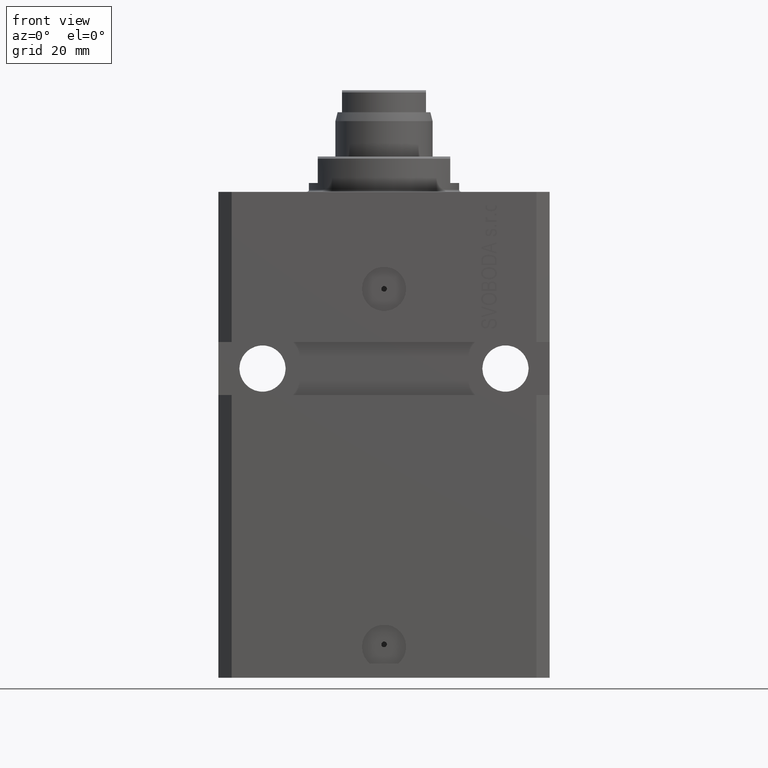
[diagram: clean part render]
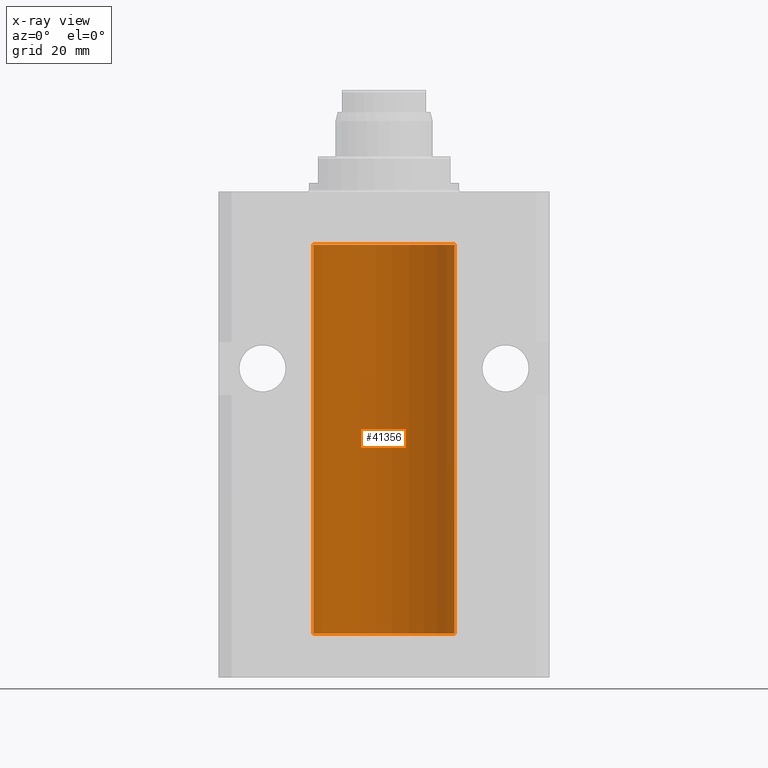
[diagram: x-ray — body ghosted, one internal face saturated and labeled with its STEP entity id]
A machine part, front view, then the same camera in x-ray: the body is ghosted and one INTERNAL B-rep face — a face not visible from any outside direction — is saturated and labeled: STEP entity #41356.
In plain terms, the highlighted cylindrical surface (partial cylindrical patch) has radius 16 mm, axis along (0, 0, 1).
Its self-contained STEP definition (entity closure, byte-faithful):
#907 = CARTESIAN_POINT ( 'NONE',  ( 16.00000000000000000, 0.000000000000000000, -99.99999999999998579 ) ) ;
#1214 = DIRECTION ( 'NONE',  ( 0.000000000000000000, 0.000000000000000000, 1.000000000000000000 ) ) ;
#1346 = DIRECTION ( 'NONE',  ( -0.000000000000000000, -0.000000000000000000, 1.000000000000000000 ) ) ;
#1534 = VERTEX_POINT ( 'NONE', #42484 ) ;
#2034 = CARTESIAN_POINT ( 'NONE',  ( 16.00000000000001066, 0.08261762387943044628, -98.62500000000001421 ) ) ;
#3842 = FACE_OUTER_BOUND ( 'NONE', #26630, .T. ) ;
#4181 = EDGE_CURVE ( 'NONE', #10370, #41296, #8754, .T. ) ;
#4591 = VERTEX_POINT ( 'NONE', #35826 ) ;
#5964 = CARTESIAN_POINT ( 'NONE',  ( 15.99711856062700477, 0.3252985083514284281, -97.44140297987712529 ) ) ;
#6061 = CARTESIAN_POINT ( 'NONE',  ( 15.99934183755190986, 0.1636877470527013101, -98.60872690654072414 ) ) ;
#6594 = CARTESIAN_POINT ( 'NONE',  ( 16.00000000000000000, 0.000000000000000000, -12.00000000000000000 ) ) ;
#7344 = DIRECTION ( 'NONE',  ( 0.000000000000000000, 0.000000000000000000, 1.000000000000000000 ) ) ;
#7639 = CARTESIAN_POINT ( 'NONE',  ( 0.000000000000000000, 0.000000000000000000, -99.99999999999998579 ) ) ;
#8754 = LINE ( 'NONE', #907, #24798 ) ;
#8823 = CARTESIAN_POINT ( 'NONE',  ( 0.000000000000000000, 0.000000000000000000, -99.99999999999998579 ) ) ;
#9251 = EDGE_CURVE ( 'NONE', #28134, #10370, #22077, .T. ) ;
#9863 = CARTESIAN_POINT ( 'NONE',  ( 15.99707608081895138, 0.3151028052310259620, -98.54594170697734512 ) ) ;
#10079 = CARTESIAN_POINT ( 'NONE',  ( 15.99070366873610283, 0.5574063959867601170, -98.32639436837558833 ) ) ;
#10149 = LINE ( 'NONE', #20569, #35337 ) ;
#10370 = VERTEX_POINT ( 'NONE', #37584 ) ;
#10791 = CARTESIAN_POINT ( 'NONE',  ( 15.98778830858070954, 0.6250000000079481977, -21.99999999999914735 ) ) ;
#11008 = CARTESIAN_POINT ( 'NONE',  ( 15.98778830858103817, 0.6249999999996181943, -21.91847885046212951 ) ) ;
#11026 = CARTESIAN_POINT ( 'NONE',  ( -16.00000000000000000, 1.959434878635765131E-15, -12.00000000000000000 ) ) ;
#12508 = VECTOR ( 'NONE', #46630, 1000.000000000000000 ) ;
#12606 = CARTESIAN_POINT ( 'NONE',  ( 16.00000000000013145, 3.665532692826917502E-13, -97.37499999999657518 ) ) ;
#13277 = VERTEX_POINT ( 'NONE', #30690 ) ;
#13386 = AXIS2_PLACEMENT_3D ( 'NONE', #7639, #22055, #41707 ) ;
#13401 = EDGE_CURVE ( 'NONE', #4591, #28134, #13532, .T. ) ;
#13506 = EDGE_CURVE ( 'NONE', #31815, #43885, #44548, .T. ) ;
#13532 = B_SPLINE_CURVE_WITH_KNOTS ( 'NONE', 3,
 ( #24260, #2034, #6061, #9863, #38501, #10079, #20494, #34937 ),
 .UNSPECIFIED., .F., .F.,
 ( 4, 2, 2, 4 ),
 ( 1.783888443149829469E-18, 0.0002443331572175257886, 0.0004886663144350497342, 0.0009773326288700682433 ),
 .UNSPECIFIED. ) ;
#13642 = CARTESIAN_POINT ( 'NONE',  ( 15.98778830858101685, 0.6250000000001205702, -22.16311639173018833 ) ) ;
#13699 = CIRCLE ( 'NONE', #40162, 16.00000000000000000 ) ;
#14356 = ORIENTED_EDGE ( 'NONE', *, *, #4181, .T. ) ;
#14584 = ORIENTED_EDGE ( 'NONE', *, *, #9251, .T. ) ;
#14875 = EDGE_CURVE ( 'NONE', #1534, #13277, #13699, .T. ) ;
#14908 = CARTESIAN_POINT ( 'NONE',  ( 16.00000000000000000, 0.000000000000000000, -99.99999999999998579 ) ) ;
#15770 = ORIENTED_EDGE ( 'NONE', *, *, #28020, .F. ) ;
#15783 = CARTESIAN_POINT ( 'NONE',  ( 16.00000000000013145, 3.665532680419208314E-13, -21.37499999999658229 ) ) ;
#16615 = CARTESIAN_POINT ( 'NONE',  ( 15.98844460043491367, 0.6087869699337551399, -97.83657454967556077 ) ) ;
#18115 = CARTESIAN_POINT ( 'NONE',  ( 15.99934183755191341, 0.1636877470526797440, -22.60872690654067796 ) ) ;
#19340 = LINE ( 'NONE', #34024, #36698 ) ;
#19597 = CARTESIAN_POINT ( 'NONE',  ( 15.98778830858070954, 0.6250000000079481977, -21.99999999999914735 ) ) ;
#20402 = CARTESIAN_POINT ( 'NONE',  ( 15.99999999999999645, 0.1631343969470158417, -97.37500000000021316 ) ) ;
#20494 = CARTESIAN_POINT ( 'NONE',  ( 15.98778830858101685, 0.6250000000002223777, -98.16311639173024162 ) ) ;
#20569 = CARTESIAN_POINT ( 'NONE',  ( 16.00000000000000000, 0.000000000000000000, -99.99999999999998579 ) ) ;
#21411 = CARTESIAN_POINT ( 'NONE',  ( 15.98778830858070954, 0.6250000000079481977, -21.99999999999914735 ) ) ;
#21648 = CARTESIAN_POINT ( 'NONE',  ( 15.99228275317787151, 0.5002975944204001157, -21.61642014570180947 ) ) ;
#22055 = DIRECTION ( 'NONE',  ( -0.000000000000000000, -0.000000000000000000, 1.000000000000000000 ) ) ;
#22077 = B_SPLINE_CURVE_WITH_KNOTS ( 'NONE', 3,
 ( #23938, #38409, #16615, #45499, #27485, #5964, #20402, #12606 ),
 .UNSPECIFIED., .F., .F.,
 ( 4, 2, 2, 4 ),
 ( 0.0009773326288700682433, 0.001221554802188685399, 0.001465776975507302772, 0.001954221322144537518 ),
 .UNSPECIFIED. ) ;
#22102 = CARTESIAN_POINT ( 'NONE',  ( 15.99999999999998934, 0.1631343969470015198, -21.37500000000020961 ) ) ;
#23855 = EDGE_CURVE ( 'NONE', #32314, #30416, #35166, .T. ) ;
#23938 = CARTESIAN_POINT ( 'NONE',  ( 15.98778830858070954, 0.6250000000080517815, -97.99999999999916156 ) ) ;
#24260 = CARTESIAN_POINT ( 'NONE',  ( 16.00000000000000000, -1.835653844722709729E-15, -98.62500000000000000 ) ) ;
#24556 = AXIS2_PLACEMENT_3D ( 'NONE', #41998, #7344, #45775 ) ;
#24798 = VECTOR ( 'NONE', #30268, 1000.000000000000000 ) ;
#25319 = LINE ( 'NONE', #14908, #12508 ) ;
#26630 = EDGE_LOOP ( 'NONE', ( #15770, #45455, #30995, #33099, #14584, #14356, #30254, #44178, #39662, #40058 ) ) ;
#27485 = CARTESIAN_POINT ( 'NONE',  ( 15.99228275317786441, 0.5002975944204781644, -97.61642014570176684 ) ) ;
#28020 = EDGE_CURVE ( 'NONE', #13277, #30416, #19340, .T. ) ;
#28134 = VERTEX_POINT ( 'NONE', #31855 ) ;
#28290 = CARTESIAN_POINT ( 'NONE',  ( 15.99548458234361803, 0.3844468804815586727, -22.49947786696350960 ) ) ;
#28465 = CARTESIAN_POINT ( 'NONE',  ( 16.00000000000000000, 2.111103446002389479E-15, -22.62500000000000000 ) ) ;
#28802 = B_SPLINE_CURVE_WITH_KNOTS ( 'NONE', 3,
 ( #30706, #45146, #18115, #39202, #28290, #35639, #13642, #10791 ),
 .UNSPECIFIED., .F., .F.,
 ( 4, 2, 2, 4 ),
 ( 3.199434161265750614E-18, 0.0002443331572174949973, 0.0004886663144349868504, 0.0009773326288699782545 ),
 .UNSPECIFIED. ) ;
#30254 = ORIENTED_EDGE ( 'NONE', *, *, #44045, .T. ) ;
#30268 = DIRECTION ( 'NONE',  ( -0.000000000000000000, -0.000000000000000000, 1.000000000000000000 ) ) ;
#30416 = VERTEX_POINT ( 'NONE', #11026 ) ;
#30690 = CARTESIAN_POINT ( 'NONE',  ( -16.00000000000000000, 1.959434878635765131E-15, -99.99999999999998579 ) ) ;
#30706 = CARTESIAN_POINT ( 'NONE',  ( 16.00000000000000000, 2.111103446002389479E-15, -22.62500000000000000 ) ) ;
#30764 = DIRECTION ( 'NONE',  ( -0.000000000000000000, -0.000000000000000000, 1.000000000000000000 ) ) ;
#30995 = ORIENTED_EDGE ( 'NONE', *, *, #36966, .T. ) ;
#31815 = VERTEX_POINT ( 'NONE', #19597 ) ;
#31855 = CARTESIAN_POINT ( 'NONE',  ( 15.98778830858070954, 0.6250000000080517815, -97.99999999999916156 ) ) ;
#32314 = VERTEX_POINT ( 'NONE', #6594 ) ;
#33099 = ORIENTED_EDGE ( 'NONE', *, *, #13401, .T. ) ;
#34024 = CARTESIAN_POINT ( 'NONE',  ( -16.00000000000000000, 1.959434878635765131E-15, -99.99999999999998579 ) ) ;
#34937 = CARTESIAN_POINT ( 'NONE',  ( 15.98778830858070954, 0.6250000000080517815, -97.99999999999916156 ) ) ;
#35166 = CIRCLE ( 'NONE', #24556, 16.00000000000000000 ) ;
#35337 = VECTOR ( 'NONE', #30764, 1000.000000000000000 ) ;
#35639 = CARTESIAN_POINT ( 'NONE',  ( 15.99070366873610993, 0.5574063959866684126, -22.32639436837550306 ) ) ;
#35826 = CARTESIAN_POINT ( 'NONE',  ( 16.00000000000000000, -1.835653844722709729E-15, -98.62500000000000000 ) ) ;
#35856 = CARTESIAN_POINT ( 'NONE',  ( 15.99711856062700122, 0.3252985083513914577, -21.44140297987715016 ) ) ;
#36698 = VECTOR ( 'NONE', #1346, 1000.000000000000000 ) ;
#36966 = EDGE_CURVE ( 'NONE', #1534, #4591, #25319, .T. ) ;
#37584 = CARTESIAN_POINT ( 'NONE',  ( 16.00000000000013145, 3.665532692826917502E-13, -97.37499999999657518 ) ) ;
#38409 = CARTESIAN_POINT ( 'NONE',  ( 15.98778830858103817, 0.6249999999997223332, -97.91847885046210820 ) ) ;
#38501 = CARTESIAN_POINT ( 'NONE',  ( 15.99548458234361448, 0.3844468804816183471, -98.49947786696355934 ) ) ;
#39185 = CARTESIAN_POINT ( 'NONE',  ( 15.99070695999104252, 0.5461439696926365661, -21.68526802364053196 ) ) ;
#39202 = CARTESIAN_POINT ( 'NONE',  ( 15.99707608081895138, 0.3151028052309821081, -22.54594170697727051 ) ) ;
#39662 = ORIENTED_EDGE ( 'NONE', *, *, #41764, .T. ) ;
#40058 = ORIENTED_EDGE ( 'NONE', *, *, #23855, .T. ) ;
#40114 = CARTESIAN_POINT ( 'NONE',  ( 15.98844460043492077, 0.6087869699336542206, -21.83657454967558209 ) ) ;
#40162 = AXIS2_PLACEMENT_3D ( 'NONE', #8823, #1214, #44781 ) ;
#41296 = VERTEX_POINT ( 'NONE', #28465 ) ;
#41356 = ADVANCED_FACE ( 'NONE', ( #3842 ), #43615, .F. ) ;
#41707 = DIRECTION ( 'NONE',  ( 1.000000000000000000, 0.000000000000000000, 0.000000000000000000 ) ) ;
#41764 = EDGE_CURVE ( 'NONE', #43885, #32314, #10149, .T. ) ;
#41998 = CARTESIAN_POINT ( 'NONE',  ( 0.000000000000000000, 0.000000000000000000, -12.00000000000000000 ) ) ;
#42484 = CARTESIAN_POINT ( 'NONE',  ( 16.00000000000000000, 0.000000000000000000, -99.99999999999998579 ) ) ;
#43615 = CYLINDRICAL_SURFACE ( 'NONE', #13386, 16.00000000000000000 ) ;
#43885 = VERTEX_POINT ( 'NONE', #15783 ) ;
#44045 = EDGE_CURVE ( 'NONE', #41296, #31815, #28802, .T. ) ;
#44178 = ORIENTED_EDGE ( 'NONE', *, *, #13506, .T. ) ;
#44548 = B_SPLINE_CURVE_WITH_KNOTS ( 'NONE', 3,
 ( #21411, #11008, #40114, #39185, #21648, #35856, #22102, #46735 ),
 .UNSPECIFIED., .F., .F.,
 ( 4, 2, 2, 4 ),
 ( 0.0009773326288699782545, 0.001221554802188574377, 0.001465776975507170283, 0.001954221322144355372 ),
 .UNSPECIFIED. ) ;
#44781 = DIRECTION ( 'NONE',  ( 1.000000000000000000, 0.000000000000000000, 0.000000000000000000 ) ) ;
#45146 = CARTESIAN_POINT ( 'NONE',  ( 15.99999999999999645, 0.08261762387942306329, -22.62499999999997868 ) ) ;
#45455 = ORIENTED_EDGE ( 'NONE', *, *, #14875, .F. ) ;
#45499 = CARTESIAN_POINT ( 'NONE',  ( 15.99070695999103542, 0.5461439696927204990, -97.68526802364048933 ) ) ;
#45775 = DIRECTION ( 'NONE',  ( 1.000000000000000000, 0.000000000000000000, 0.000000000000000000 ) ) ;
#46630 = DIRECTION ( 'NONE',  ( -0.000000000000000000, -0.000000000000000000, 1.000000000000000000 ) ) ;
#46735 = CARTESIAN_POINT ( 'NONE',  ( 16.00000000000013145, 3.665532680419208314E-13, -21.37499999999658229 ) ) ;